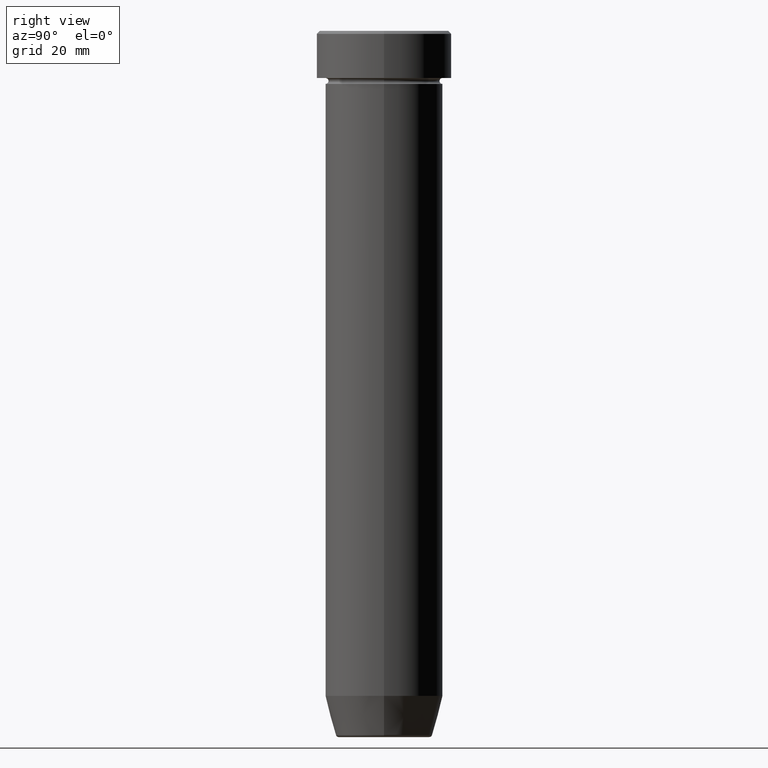
[diagram: clean part render]
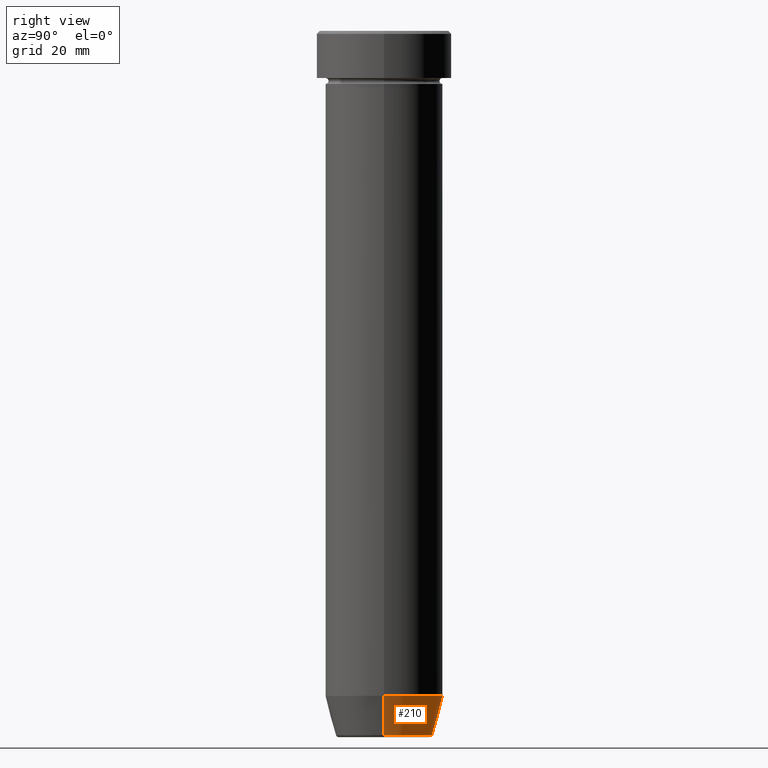
[diagram: same view with one face highlighted and labeled with its STEP entity id]
A machine part, right view. The second image highlights one B-rep face of the part: STEP entity #210.
In plain terms, the highlighted conical surface has half-angle 15 deg.
Its self-contained STEP definition (entity closure, byte-faithful):
#38 = CIRCLE ( 'NONE', #104, 8.223655072137185940 ) ;
#53 = DIRECTION ( 'NONE',  ( 1.000000000000000000, 0.000000000000000000, 0.000000000000000000 ) ) ;
#67 = EDGE_LOOP ( 'NONE', ( #271, #327, #97, #341 ) ) ;
#80 = DIRECTION ( 'NONE',  ( 0.2588190451025214611, 0.000000000000000000, 0.9659258262890679791 ) ) ;
#89 = CARTESIAN_POINT ( 'NONE',  ( 0.000000000000000000, 0.000000000000000000, -120.0000000000000000 ) ) ;
#97 = ORIENTED_EDGE ( 'NONE', *, *, #511, .F. ) ;
#104 = AXIS2_PLACEMENT_3D ( 'NONE', #326, #192, #337 ) ;
#130 = CIRCLE ( 'NONE', #434, 9.999999999999998224 ) ;
#135 = CARTESIAN_POINT ( 'NONE',  ( -9.999999999999998224, 1.224646799147353059E-15, -112.9999999999999858 ) ) ;
#164 = DIRECTION ( 'NONE',  ( -0.2588190451025214611, 3.169619151431774186E-17, 0.9659258262890679791 ) ) ;
#190 = CONICAL_SURFACE ( 'NONE', #538, 8.124355652982131915, 0.2617993877991502405 ) ;
#192 = DIRECTION ( 'NONE',  ( -0.000000000000000000, -0.000000000000000000, 1.000000000000000000 ) ) ;
#210 = ADVANCED_FACE ( 'NONE', ( #367 ), #190, .T. ) ;
#212 = VERTEX_POINT ( 'NONE', #407 ) ;
#232 = DIRECTION ( 'NONE',  ( -0.000000000000000000, -0.000000000000000000, 1.000000000000000000 ) ) ;
#235 = VECTOR ( 'NONE', #80, 1000.000000000000114 ) ;
#244 = DIRECTION ( 'NONE',  ( 1.000000000000000000, 0.000000000000000000, 0.000000000000000000 ) ) ;
#249 = CARTESIAN_POINT ( 'NONE',  ( -8.124355652982131915, 9.949466145559272639E-16, -120.0000000000000000 ) ) ;
#271 = ORIENTED_EDGE ( 'NONE', *, *, #499, .T. ) ;
#299 = CARTESIAN_POINT ( 'NONE',  ( 8.124355652982131915, 0.000000000000000000, -120.0000000000000000 ) ) ;
#317 = EDGE_CURVE ( 'NONE', #212, #500, #472, .T. ) ;
#324 = CARTESIAN_POINT ( 'NONE',  ( 9.999999999999998224, 0.000000000000000000, -112.9999999999999858 ) ) ;
#326 = CARTESIAN_POINT ( 'NONE',  ( 0.000000000000000000, 0.000000000000000000, -119.6294095225512564 ) ) ;
#327 = ORIENTED_EDGE ( 'NONE', *, *, #559, .T. ) ;
#337 = DIRECTION ( 'NONE',  ( -1.000000000000000000, 0.000000000000000000, 0.000000000000000000 ) ) ;
#341 = ORIENTED_EDGE ( 'NONE', *, *, #317, .F. ) ;
#367 = FACE_OUTER_BOUND ( 'NONE', #67, .T. ) ;
#368 = VERTEX_POINT ( 'NONE', #135 ) ;
#407 = CARTESIAN_POINT ( 'NONE',  ( 8.223655072137185940, 0.000000000000000000, -119.6294095225512564 ) ) ;
#434 = AXIS2_PLACEMENT_3D ( 'NONE', #516, #569, #244 ) ;
#466 = LINE ( 'NONE', #249, #577 ) ;
#472 = LINE ( 'NONE', #299, #235 ) ;
#499 = EDGE_CURVE ( 'NONE', #212, #523, #38, .T. ) ;
#500 = VERTEX_POINT ( 'NONE', #324 ) ;
#508 = CARTESIAN_POINT ( 'NONE',  ( -8.223655072137185940, 1.115877042642911659E-15, -119.6294095225512564 ) ) ;
#511 = EDGE_CURVE ( 'NONE', #500, #368, #130, .T. ) ;
#516 = CARTESIAN_POINT ( 'NONE',  ( 0.000000000000000000, 0.000000000000000000, -112.9999999999999858 ) ) ;
#523 = VERTEX_POINT ( 'NONE', #508 ) ;
#538 = AXIS2_PLACEMENT_3D ( 'NONE', #89, #232, #53 ) ;
#559 = EDGE_CURVE ( 'NONE', #523, #368, #466, .T. ) ;
#569 = DIRECTION ( 'NONE',  ( -0.000000000000000000, -0.000000000000000000, 1.000000000000000000 ) ) ;
#577 = VECTOR ( 'NONE', #164, 1000.000000000000114 ) ;